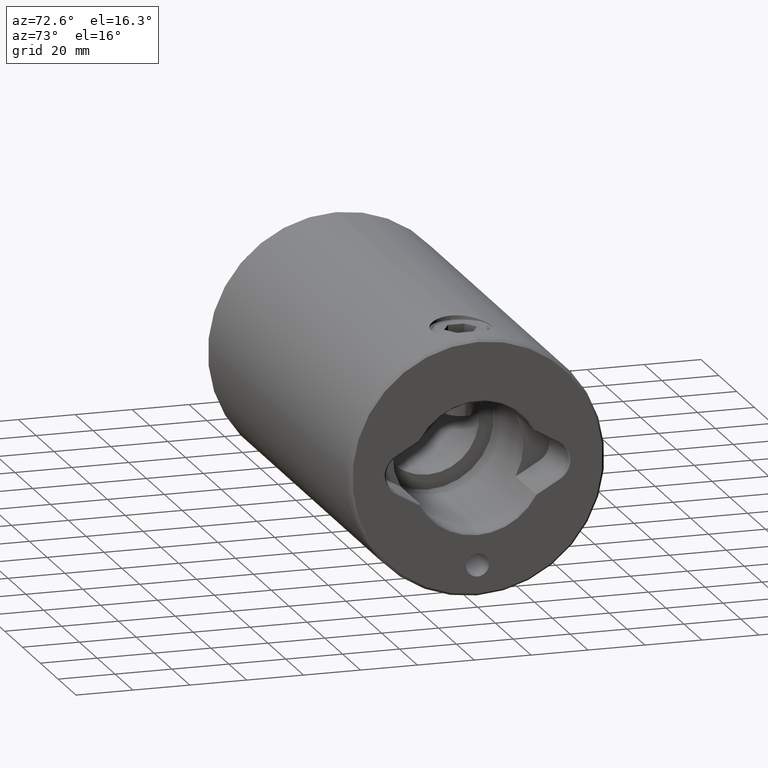
[diagram: clean part render]
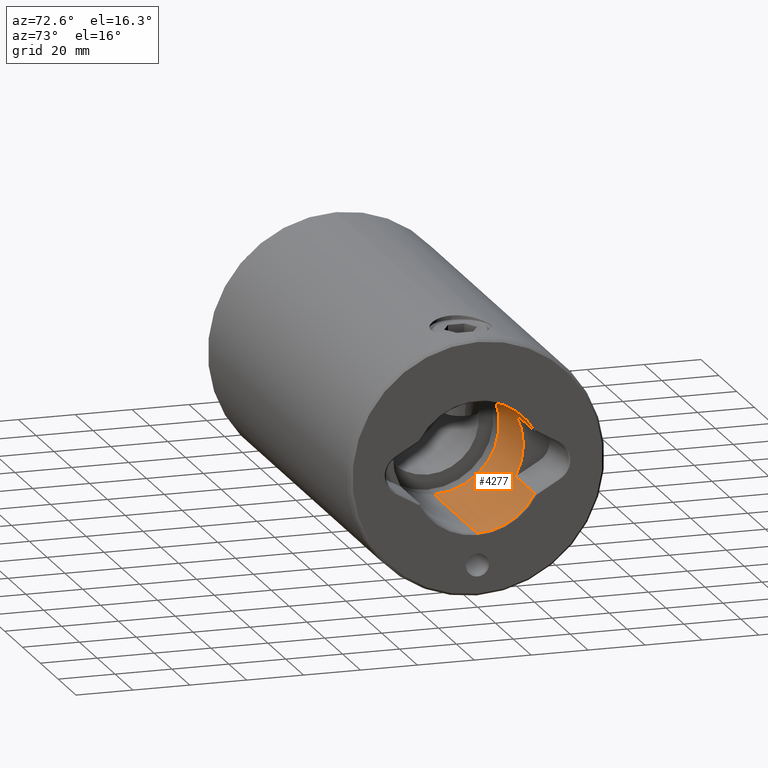
[diagram: same view with one face highlighted and labeled with its STEP entity id]
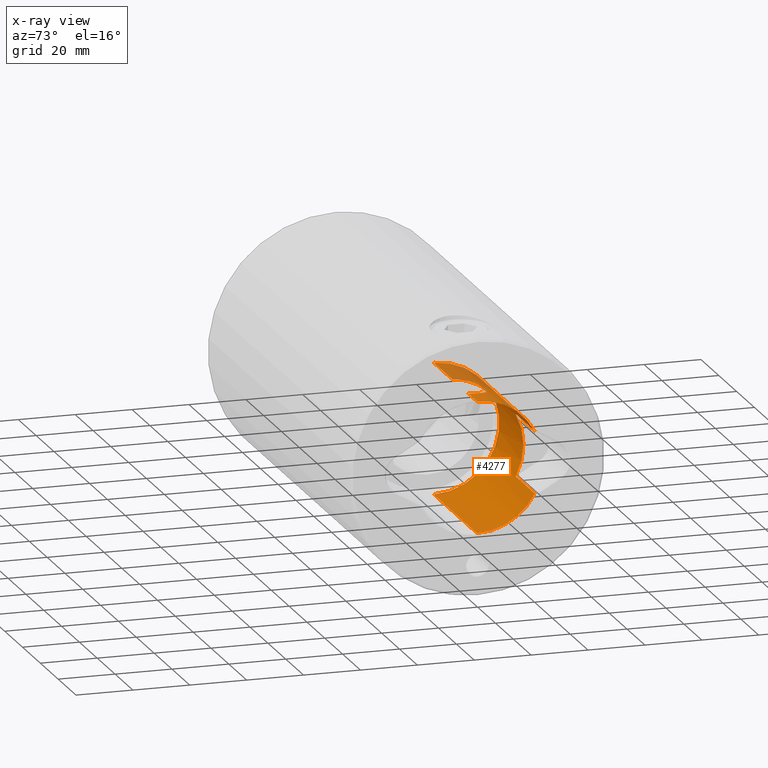
[diagram: x-ray of the same camera — body ghosted, the highlighted face saturated]
A machine part, auxiliary view. The second image highlights one B-rep face of the part: STEP entity #4277.
The next image is the same camera in x-ray: the body ghosted, the highlighted face saturated — about 8% of this face is hidden behind the body in this view.
In plain terms, the highlighted cylindrical surface (partial cylindrical patch) has radius 23 mm, axis along (1, 0, -0).
Its self-contained STEP definition (entity closure, byte-faithful):
#8 = CARTESIAN_POINT ( 'NONE',  ( 22.82647322422242900, 2.833629017805799200, 10.76648885446805300 ) ) ;
#10 = VERTEX_POINT ( 'NONE', #167 ) ;
#24 = CARTESIAN_POINT ( 'NONE',  ( 21.27071396625982700, 8.749670136164635200, 18.46803675721331200 ) ) ;
#33 = EDGE_CURVE ( 'NONE', #2814, #2419, #309, .T. ) ;
#106 = CARTESIAN_POINT ( 'NONE',  ( 23.00000000000000400, 0.2876302714626601300, 27.79999999999999000 ) ) ;
#113 = DIRECTION ( 'NONE',  ( -1.000000000000000000, 0.0000000000000000000, 0.0000000000000000000 ) ) ;
#133 = DIRECTION ( 'NONE',  ( -0.0000000000000000000, -0.0000000000000000000, 1.000000000000000000 ) ) ;
#146 = EDGE_CURVE ( 'NONE', #3406, #2814, #3994, .T. ) ;
#167 = CARTESIAN_POINT ( 'NONE',  ( 23.00000000000000000, 2.816687638038912400E-015, 49.00000000000000000 ) ) ;
#237 = CARTESIAN_POINT ( 'NONE',  ( 23.00000000000000000, 2.816915103184660800E-015, 27.79999999999999400 ) ) ;
#264 = CARTESIAN_POINT ( 'NONE',  ( 23.00000000000000000, 2.816687638038912400E-015, 56.00000000000000000 ) ) ;
#267 = ORIENTED_EDGE ( 'NONE', *, *, #2649, .T. ) ;
#309 = LINE ( 'NONE', #3297, #4352 ) ;
#346 = CARTESIAN_POINT ( 'NONE',  ( 22.71364949128435700, 3.627790803939144200, 27.01761393111114300 ) ) ;
#392 = CARTESIAN_POINT ( 'NONE',  ( 22.67325518791901800, 3.899907173001711900, 11.19623634486692500 ) ) ;
#590 = DIRECTION ( 'NONE',  ( -0.0000000000000000000, -0.0000000000000000000, -1.000000000000000000 ) ) ;
#611 = ORIENTED_EDGE ( 'NONE', *, *, #146, .T. ) ;
#728 = EDGE_CURVE ( 'NONE', #4858, #1360, #1726, .T. ) ;
#748 = CIRCLE ( 'NONE', #2882, 23.00000000000000000 ) ;
#771 = CARTESIAN_POINT ( 'NONE',  ( 21.27051129876362600, 8.750162805382673900, 19.33351024004275200 ) ) ;
#780 = EDGE_CURVE ( 'NONE', #4858, #5061, #1288, .T. ) ;
#787 = CARTESIAN_POINT ( 'NONE',  ( 21.49444620193621300, 8.185503024997304400, 15.94500519971540200 ) ) ;
#822 = CARTESIAN_POINT ( 'NONE',  ( 21.87410311844637100, 7.109945121435953500, 24.15799489721571500 ) ) ;
#835 = CARTESIAN_POINT ( 'NONE',  ( 10.91466260670262400, 20.24524981771890700, 22.00000000000000000 ) ) ;
#863 = EDGE_CURVE ( 'NONE', #2477, #1360, #748, .T. ) ;
#876 = ORIENTED_EDGE ( 'NONE', *, *, #2670, .T. ) ;
#1043 = LINE ( 'NONE', #2148, #5088 ) ;
#1049 = LINE ( 'NONE', #1767, #4278 ) ;
#1063 = VERTEX_POINT ( 'NONE', #835 ) ;
#1134 = CARTESIAN_POINT ( 'NONE',  ( 22.42625301909557600, 5.110957167239959600, 11.94212304518946200 ) ) ;
#1153 = CARTESIAN_POINT ( 'NONE',  ( 22.83037562779471900, 2.838468955980917800, 27.34641762904085400 ) ) ;
#1168 = CARTESIAN_POINT ( 'NONE',  ( 21.27637035656256600, 8.735961869169615900, 19.62464784849695200 ) ) ;
#1187 = CARTESIAN_POINT ( 'NONE',  ( 22.79078511357471400, 3.106695688427337100, 10.86507258574110500 ) ) ;
#1204 = CARTESIAN_POINT ( 'NONE',  ( 23.00000000000000000, 9.001787135371156300E-016, 10.30000000000000800 ) ) ;
#1208 = VECTOR ( 'NONE', #4561, 1000.000000000000000 ) ;
#1215 = DIRECTION ( 'NONE',  ( -0.0000000000000000000, -0.0000000000000000000, 1.000000000000000000 ) ) ;
#1288 = B_SPLINE_CURVE_WITH_KNOTS ( 'NONE', 3,
 ( #1204, #4708, #4319, #5076, #3139, #8, #1187, #392, #1950, #1134, #2317, #3890, #3123, #2712, #4725, #1916, #3505, #787, #1575, #4674, #4651, #2372, #24, #771, #1168, #1559, #4286, #3874, #3173, #3157, #3906, #822, #3482, #4690, #3853, #2339, #1521, #4248, #2302, #5058, #346, #1153, #5091, #1537, #2749, #4018, #106, #4400 ),
 .UNSPECIFIED., .F., .F.,
 ( 4, 2, 2, 2, 2, 2, 2, 2, 2, 2, 2, 2, 2, 2, 2, 2, 2, 2, 2, 2, 2, 2, 2, 4 ),
 ( 8.736550217295964100E-019, 0.001726203375405270600, 0.002589305063107905700, 0.003452406750810540400, 0.005178610126215808800, 0.006041711813918443000, 0.006904813501621078100, 0.008631016877026352600, 0.01035722025243162500, 0.01122032194013426700, 0.01208342362783690900, 0.01380962700324217700, 0.01467272869094482000, 0.01553583037864746100, 0.01726203375405272600, 0.01898823712945799800, 0.01985133881716063000, 0.02071444050486325900, 0.02244064388026852400, 0.02330374556797116000, 0.02416684725567379600, 0.02589305063107906100, 0.02675615231878169700, 0.02761925400648433300 ),
 .UNSPECIFIED. ) ;
#1360 = VERTEX_POINT ( 'NONE', #4090 ) ;
#1372 = CARTESIAN_POINT ( 'NONE',  ( 0.0000000000000000000, 0.0000000000000000000, 0.5000000000000004400 ) ) ;
#1434 = AXIS2_PLACEMENT_3D ( 'NONE', #3655, #133, #113 ) ;
#1497 = DIRECTION ( 'NONE',  ( -0.0000000000000000000, -0.0000000000000000000, -1.000000000000000000 ) ) ;
#1502 = CARTESIAN_POINT ( 'NONE',  ( -23.00000000000000000, 0.0000000000000000000, 49.00000000000000000 ) ) ;
#1521 = CARTESIAN_POINT ( 'NONE',  ( 22.37502146825950100, 5.347186087438042400, 25.99939832810467500 ) ) ;
#1537 = CARTESIAN_POINT ( 'NONE',  ( 22.95675592967254300, 1.438306611336758600, 27.68585255195038600 ) ) ;
#1541 = VERTEX_POINT ( 'NONE', #1502 ) ;
#1559 = CARTESIAN_POINT ( 'NONE',  ( 21.29989476067637700, 8.678447356140999600, 20.20403700809680500 ) ) ;
#1571 = CYLINDRICAL_SURFACE ( 'NONE', #4783, 23.00000000000000000 ) ;
#1575 = CARTESIAN_POINT ( 'NONE',  ( 21.45709060917217700, 8.282599033378677000, 16.21381311232042000 ) ) ;
#1698 = EDGE_CURVE ( 'NONE', #1063, #2419, #3485, .T. ) ;
#1726 = LINE ( 'NONE', #264, #2641 ) ;
#1767 = CARTESIAN_POINT ( 'NONE',  ( -23.00000000000000000, 0.0000000000000000000, 56.00000000000000000 ) ) ;
#1805 = DIRECTION ( 'NONE',  ( 1.000000000000000000, 0.0000000000000000000, 0.0000000000000000000 ) ) ;
#1916 = CARTESIAN_POINT ( 'NONE',  ( 21.71460114469685000, 7.588750062532338500, 14.65661182545484200 ) ) ;
#1950 = CARTESIAN_POINT ( 'NONE',  ( 22.58029562668765800, 4.400577232456115000, 11.46563371786791700 ) ) ;
#1957 = CARTESIAN_POINT ( 'NONE',  ( 10.91466260670263100, 20.24524981771890700, 0.5000000000000073300 ) ) ;
#2148 = CARTESIAN_POINT ( 'NONE',  ( 10.91466260670263100, 20.24524981771890700, 56.00000000000000000 ) ) ;
#2207 = ORIENTED_EDGE ( 'NONE', *, *, #863, .T. ) ;
#2218 = EDGE_LOOP ( 'NONE', ( #2924, #876, #4612, #611, #4533, #2646, #267, #2207, #5100, #3483 ) ) ;
#2240 = EDGE_CURVE ( 'NONE', #1541, #3406, #1049, .T. ) ;
#2302 = CARTESIAN_POINT ( 'NONE',  ( 22.57840175478767000, 4.391100714871348600, 26.62383581653577400 ) ) ;
#2317 = CARTESIAN_POINT ( 'NONE',  ( 22.37221013411851800, 5.341865672504456900, 12.11400421193638300 ) ) ;
#2339 = CARTESIAN_POINT ( 'NONE',  ( 22.26486023155932900, 5.783557472764931300, 25.64050026564821700 ) ) ;
#2372 = CARTESIAN_POINT ( 'NONE',  ( 21.29435677868601200, 8.692831432781746400, 17.89655638186385600 ) ) ;
#2419 = VERTEX_POINT ( 'NONE', #3114 ) ;
#2477 = VERTEX_POINT ( 'NONE', #1957 ) ;
#2483 = DIRECTION ( 'NONE',  ( 0.0000000000000000000, 0.0000000000000000000, -1.000000000000000000 ) ) ;
#2641 = VECTOR ( 'NONE', #2693, 1000.000000000000000 ) ;
#2646 = ORIENTED_EDGE ( 'NONE', *, *, #1698, .F. ) ;
#2649 = EDGE_CURVE ( 'NONE', #1063, #2477, #1043, .T. ) ;
#2670 = EDGE_CURVE ( 'NONE', #10, #1541, #3364, .T. ) ;
#2693 = DIRECTION ( 'NONE',  ( 0.0000000000000000000, 0.0000000000000000000, -1.000000000000000000 ) ) ;
#2712 = CARTESIAN_POINT ( 'NONE',  ( 22.03957496172558100, 6.590073801840134100, 13.26616441564116800 ) ) ;
#2749 = CARTESIAN_POINT ( 'NONE',  ( 22.97305021472789500, 1.149609184862457000, 27.72895324198374600 ) ) ;
#2814 = VERTEX_POINT ( 'NONE', #5044 ) ;
#2844 = AXIS2_PLACEMENT_3D ( 'NONE', #3822, #1497, #1805 ) ;
#2872 = LINE ( 'NONE', #4958, #1208 ) ;
#2882 = AXIS2_PLACEMENT_3D ( 'NONE', #1372, #590, #4895 ) ;
#2924 = ORIENTED_EDGE ( 'NONE', *, *, #4004, .F. ) ;
#2931 = DIRECTION ( 'NONE',  ( -0.0000000000000000000, -0.0000000000000000000, 1.000000000000000000 ) ) ;
#2933 = DIRECTION ( 'NONE',  ( 0.0000000000000000000, 0.0000000000000000000, -1.000000000000000000 ) ) ;
#3114 = CARTESIAN_POINT ( 'NONE',  ( -10.91466260670263100, 20.24524981771890400, 22.00000000000000000 ) ) ;
#3123 = CARTESIAN_POINT ( 'NONE',  ( 22.20698818690026100, 5.991048319674718800, 12.66645304501710200 ) ) ;
#3139 = CARTESIAN_POINT ( 'NONE',  ( 22.88831201872756400, 2.280900304718646200, 10.59757406961543100 ) ) ;
#3157 = CARTESIAN_POINT ( 'NONE',  ( 21.61873234311296700, 7.854092342357796900, 22.94992981913611600 ) ) ;
#3173 = CARTESIAN_POINT ( 'NONE',  ( 21.45201412813075200, 8.298641123215320500, 21.88350924200892700 ) ) ;
#3220 = CARTESIAN_POINT ( 'NONE',  ( 0.0000000000000000000, 0.0000000000000000000, 22.00000000000000000 ) ) ;
#3297 = CARTESIAN_POINT ( 'NONE',  ( -10.91466260670263100, 20.24524981771890400, 56.00000000000000000 ) ) ;
#3364 = CIRCLE ( 'NONE', #1434, 23.00000000000000000 ) ;
#3406 = VERTEX_POINT ( 'NONE', #4015 ) ;
#3480 = CARTESIAN_POINT ( 'NONE',  ( 0.0000000000000000000, 0.0000000000000000000, 56.00000000000000000 ) ) ;
#3482 = CARTESIAN_POINT ( 'NONE',  ( 21.92863848998339200, 6.940516233955290400, 24.38602726447020100 ) ) ;
#3483 = ORIENTED_EDGE ( 'NONE', *, *, #780, .T. ) ;
#3485 = CIRCLE ( 'NONE', #4775, 23.00000000000000000 ) ;
#3505 = CARTESIAN_POINT ( 'NONE',  ( 21.61764029903936200, 7.856992879087251000, 15.15718959797549600 ) ) ;
#3655 = CARTESIAN_POINT ( 'NONE',  ( 0.0000000000000000000, 0.0000000000000000000, 49.00000000000000000 ) ) ;
#3822 = CARTESIAN_POINT ( 'NONE',  ( 0.0000000000000000000, 0.0000000000000000000, 0.5000000000000004400 ) ) ;
#3853 = CARTESIAN_POINT ( 'NONE',  ( 22.09683052002917900, 6.385410363635116000, 25.03911238716157300 ) ) ;
#3874 = CARTESIAN_POINT ( 'NONE',  ( 21.38559924421623700, 8.465872961930813300, 21.33516455544060300 ) ) ;
#3890 = CARTESIAN_POINT ( 'NONE',  ( 22.26265561750513900, 5.781477320253348900, 12.47595357253130600 ) ) ;
#3906 = CARTESIAN_POINT ( 'NONE',  ( 21.71630774208786000, 7.583719767762913100, 23.45129759085808300 ) ) ;
#3991 = DIRECTION ( 'NONE',  ( -1.000000000000000000, 1.776356839400250500E-015, 0.0000000000000000000 ) ) ;
#3994 = CIRCLE ( 'NONE', #2844, 23.00000000000000000 ) ;
#4004 = EDGE_CURVE ( 'NONE', #10, #5061, #2872, .T. ) ;
#4015 = CARTESIAN_POINT ( 'NONE',  ( -23.00000000000000000, 0.0000000000000000000, 0.5000000000000004400 ) ) ;
#4018 = CARTESIAN_POINT ( 'NONE',  ( 22.99460636268318900, 0.5750788394468048200, 27.78585227570160400 ) ) ;
#4090 = CARTESIAN_POINT ( 'NONE',  ( 23.00000000000000000, 2.816687638038912400E-015, 0.5000000000000004400 ) ) ;
#4248 = CARTESIAN_POINT ( 'NONE',  ( 22.52879557855931100, 4.638088611613369500, 26.47506855691656500 ) ) ;
#4277 = ADVANCED_FACE ( 'NONE', ( #4953 ), #1571, .F. ) ;
#4278 = VECTOR ( 'NONE', #2933, 1000.000000000000000 ) ;
#4286 = CARTESIAN_POINT ( 'NONE',  ( 21.31739538385432200, 8.635529460251412100, 20.48970533595531400 ) ) ;
#4319 = CARTESIAN_POINT ( 'NONE',  ( 22.97780217286428700, 1.157338971027883600, 10.35788529273376000 ) ) ;
#4352 = VECTOR ( 'NONE', #2931, 1000.000000000000000 ) ;
#4400 = CARTESIAN_POINT ( 'NONE',  ( 23.00000000000000000, 2.816915103184660800E-015, 27.79999999999999400 ) ) ;
#4533 = ORIENTED_EDGE ( 'NONE', *, *, #33, .T. ) ;
#4561 = DIRECTION ( 'NONE',  ( 0.0000000000000000000, 0.0000000000000000000, -1.000000000000000000 ) ) ;
#4612 = ORIENTED_EDGE ( 'NONE', *, *, #2240, .T. ) ;
#4651 = CARTESIAN_POINT ( 'NONE',  ( 21.36276762995154100, 8.522669559643684800, 17.04752248405451500 ) ) ;
#4673 = DIRECTION ( 'NONE',  ( 0.0000000000000000000, 0.0000000000000000000, -1.000000000000000000 ) ) ;
#4674 = CARTESIAN_POINT ( 'NONE',  ( 21.39127149467109800, 8.451135308301575200, 16.76445524866622000 ) ) ;
#4690 = CARTESIAN_POINT ( 'NONE',  ( 22.04008380412203000, 6.578043594067725800, 24.82696244020252900 ) ) ;
#4708 = CARTESIAN_POINT ( 'NONE',  ( 23.00000000000000000, 0.5840702523644952800, 10.30000000000000800 ) ) ;
#4725 = CARTESIAN_POINT ( 'NONE',  ( 21.92713170609178900, 6.950821931869561400, 13.70424826284844300 ) ) ;
#4738 = CARTESIAN_POINT ( 'NONE',  ( 23.00000000000000000, 9.001787135371156300E-016, 10.30000000000000800 ) ) ;
#4775 = AXIS2_PLACEMENT_3D ( 'NONE', #3220, #1215, #3991 ) ;
#4783 = AXIS2_PLACEMENT_3D ( 'NONE', #3480, #4673, #5074 ) ;
#4858 = VERTEX_POINT ( 'NONE', #4738 ) ;
#4895 = DIRECTION ( 'NONE',  ( 1.000000000000000000, 0.0000000000000000000, 0.0000000000000000000 ) ) ;
#4953 = FACE_OUTER_BOUND ( 'NONE', #2218, .T. ) ;
#4958 = CARTESIAN_POINT ( 'NONE',  ( 23.00000000000000000, 2.816687638038912400E-015, 56.00000000000000000 ) ) ;
#5044 = CARTESIAN_POINT ( 'NONE',  ( -10.91466260670263100, 20.24524981771890400, 0.5000000000000073300 ) ) ;
#5058 = CARTESIAN_POINT ( 'NONE',  ( 22.67084570997149500, 3.885710499176350000, 26.89512640947069500 ) ) ;
#5061 = VERTEX_POINT ( 'NONE', #237 ) ;
#5074 = DIRECTION ( 'NONE',  ( -1.000000000000000000, 0.0000000000000000000, 0.0000000000000000000 ) ) ;
#5076 = CARTESIAN_POINT ( 'NONE',  ( 22.91444863313331500, 2.001936659033265500, 10.52725410986856900 ) ) ;
#5088 = VECTOR ( 'NONE', #2483, 1000.000000000000000 ) ;
#5091 = CARTESIAN_POINT ( 'NONE',  ( 22.89265766450899500, 2.291658776231035000, 27.51448467907491800 ) ) ;
#5100 = ORIENTED_EDGE ( 'NONE', *, *, #728, .F. ) ;